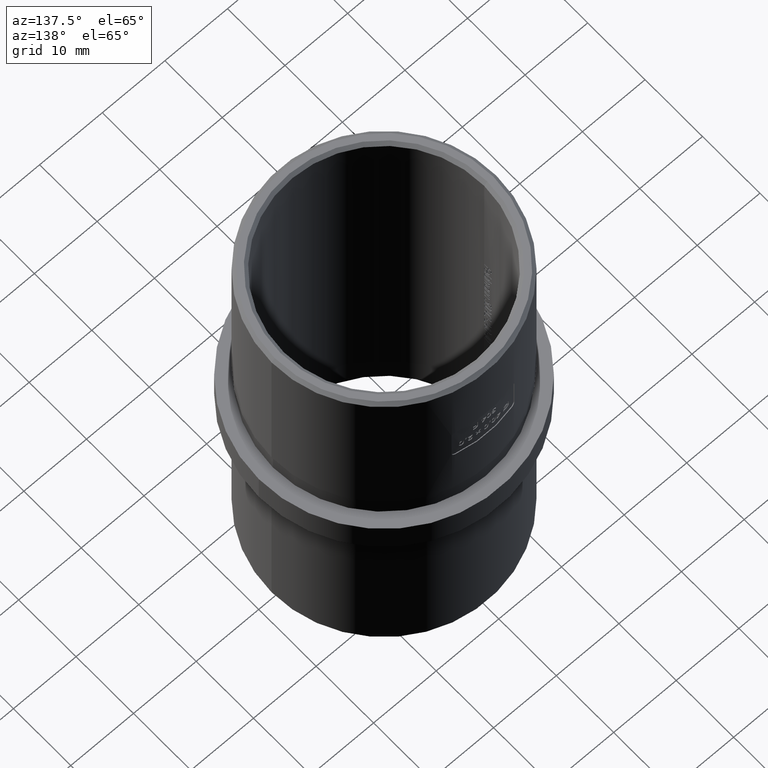
[diagram: clean part render]
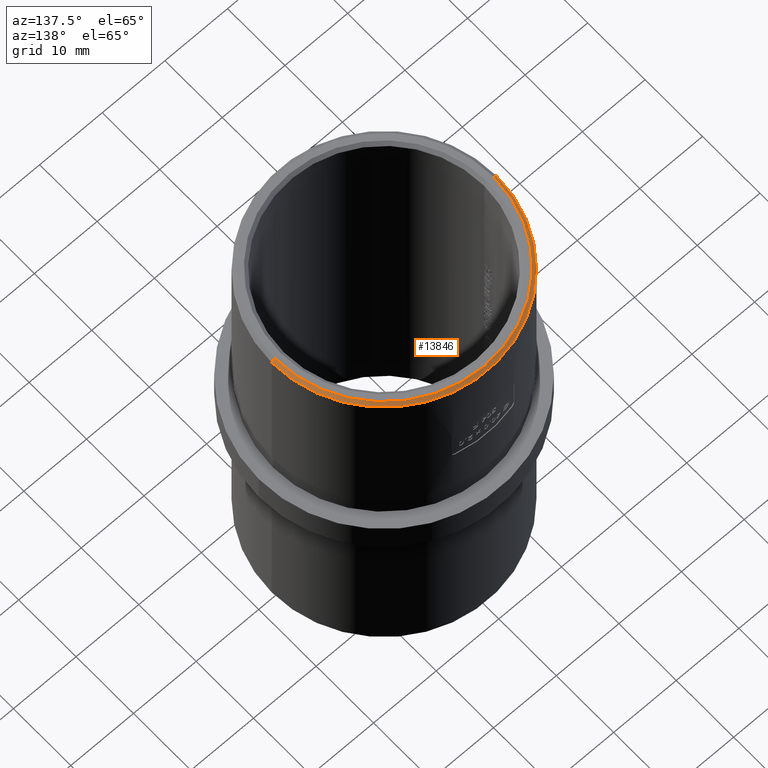
[diagram: same view with one face highlighted and labeled with its STEP entity id]
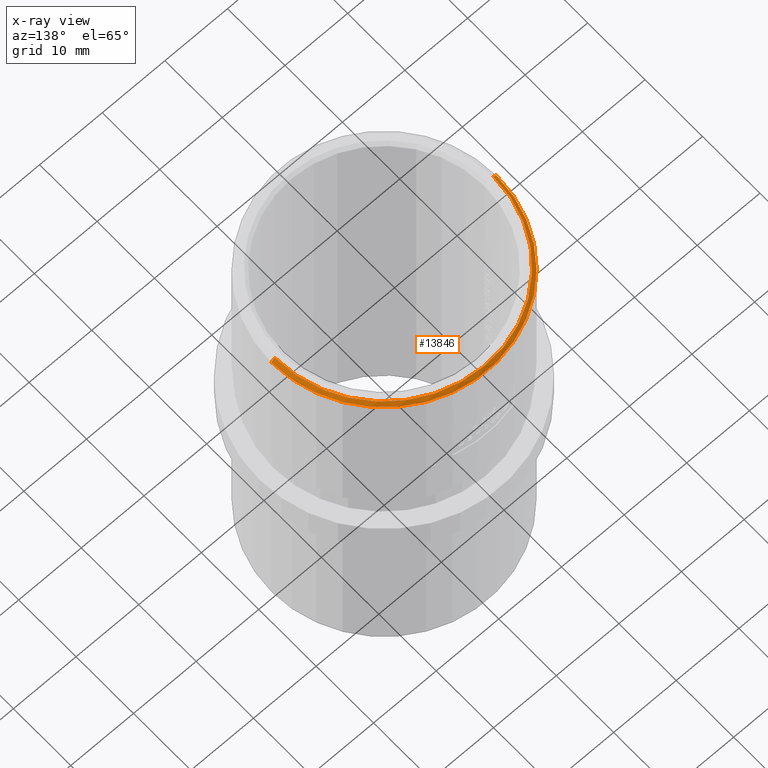
[diagram: x-ray of the same camera — body ghosted, the highlighted face saturated]
A machine part, auxiliary view. The second image highlights one B-rep face of the part: STEP entity #13846.
The next image is the same camera in x-ray: the body ghosted, the highlighted face saturated — about 0% of this face is hidden behind the body in this view.
In plain terms, the highlighted conical surface has half-angle 45 deg.
Its self-contained STEP definition (entity closure, byte-faithful):
#99 = CIRCLE ( 'NONE', #2073, 17.94999999999999900 ) ;
#802 = CARTESIAN_POINT ( 'NONE',  ( 0.0000000000000000000, 0.0000000000000000000, 32.50000000000000000 ) ) ;
#1181 = CARTESIAN_POINT ( 'NONE',  ( -17.44999999999999900, 0.0000000000000000000, 32.50000000000000000 ) ) ;
#1311 = DIRECTION ( 'NONE',  ( 0.0000000000000000000, 0.0000000000000000000, -1.000000000000000000 ) ) ;
#1837 = DIRECTION ( 'NONE',  ( -1.000000000000000000, 0.0000000000000000000, 0.0000000000000000000 ) ) ;
#2073 = AXIS2_PLACEMENT_3D ( 'NONE', #20018, #1311, #3158 ) ;
#2787 = VERTEX_POINT ( 'NONE', #20090 ) ;
#3158 = DIRECTION ( 'NONE',  ( 1.000000000000000000, 0.0000000000000000000, 0.0000000000000000000 ) ) ;
#3419 = VERTEX_POINT ( 'NONE', #20446 ) ;
#3586 = EDGE_CURVE ( 'NONE', #6932, #2787, #99, .T. ) ;
#4874 = VECTOR ( 'NONE', #21620, 1000.000000000000000 ) ;
#4957 = AXIS2_PLACEMENT_3D ( 'NONE', #10292, #5293, #1837 ) ;
#5048 = LINE ( 'NONE', #18534, #12471 ) ;
#5293 = DIRECTION ( 'NONE',  ( 0.0000000000000000000, 0.0000000000000000000, -1.000000000000000000 ) ) ;
#5993 = DIRECTION ( 'NONE',  ( 1.000000000000000000, 0.0000000000000000000, 0.0000000000000000000 ) ) ;
#6932 = VERTEX_POINT ( 'NONE', #18448 ) ;
#7004 = CIRCLE ( 'NONE', #19143, 17.44999999999999900 ) ;
#7277 = CARTESIAN_POINT ( 'NONE',  ( -17.44999999999999900, 0.0000000000000000000, 32.50000000000000000 ) ) ;
#8214 = DIRECTION ( 'NONE',  ( 0.7071067811865378000, 8.659560562354814500E-017, -0.7071067811865573400 ) ) ;
#8815 = VERTEX_POINT ( 'NONE', #7277 ) ;
#9073 = EDGE_CURVE ( 'NONE', #8815, #6932, #9930, .T. ) ;
#9930 = LINE ( 'NONE', #1181, #4874 ) ;
#10292 = CARTESIAN_POINT ( 'NONE',  ( 0.0000000000000000000, 0.0000000000000000000, 32.50000000000000000 ) ) ;
#11724 = ORIENTED_EDGE ( 'NONE', *, *, #9073, .F. ) ;
#12471 = VECTOR ( 'NONE', #8214, 1000.000000000000000 ) ;
#13846 = ADVANCED_FACE ( 'NONE', ( #21120 ), #17911, .T. ) ;
#17004 = ORIENTED_EDGE ( 'NONE', *, *, #22023, .F. ) ;
#17911 = CONICAL_SURFACE ( 'NONE', #4957, 17.44999999999999900, 0.7853981633974345100 ) ;
#18164 = EDGE_LOOP ( 'NONE', ( #17004, #18536, #21523, #11724 ) ) ;
#18448 = CARTESIAN_POINT ( 'NONE',  ( -17.94999999999999900, 0.0000000000000000000, 31.99999999999998600 ) ) ;
#18534 = CARTESIAN_POINT ( 'NONE',  ( 17.44999999999999900, 2.137008664512131600E-015, 32.50000000000000000 ) ) ;
#18536 = ORIENTED_EDGE ( 'NONE', *, *, #21511, .T. ) ;
#19143 = AXIS2_PLACEMENT_3D ( 'NONE', #802, #21471, #5993 ) ;
#20018 = CARTESIAN_POINT ( 'NONE',  ( 0.0000000000000000000, 0.0000000000000000000, 31.99999999999998600 ) ) ;
#20090 = CARTESIAN_POINT ( 'NONE',  ( 17.94999999999999900, 2.198241004469499100E-015, 31.99999999999998600 ) ) ;
#20446 = CARTESIAN_POINT ( 'NONE',  ( 17.44999999999999900, 2.167624834490815400E-015, 32.50000000000000000 ) ) ;
#21120 = FACE_OUTER_BOUND ( 'NONE', #18164, .T. ) ;
#21471 = DIRECTION ( 'NONE',  ( 0.0000000000000000000, 0.0000000000000000000, 1.000000000000000000 ) ) ;
#21511 = EDGE_CURVE ( 'NONE', #3419, #2787, #5048, .T. ) ;
#21523 = ORIENTED_EDGE ( 'NONE', *, *, #3586, .F. ) ;
#21620 = DIRECTION ( 'NONE',  ( -0.7071067811865378000, 0.0000000000000000000, -0.7071067811865573400 ) ) ;
#22023 = EDGE_CURVE ( 'NONE', #3419, #8815, #7004, .T. ) ;